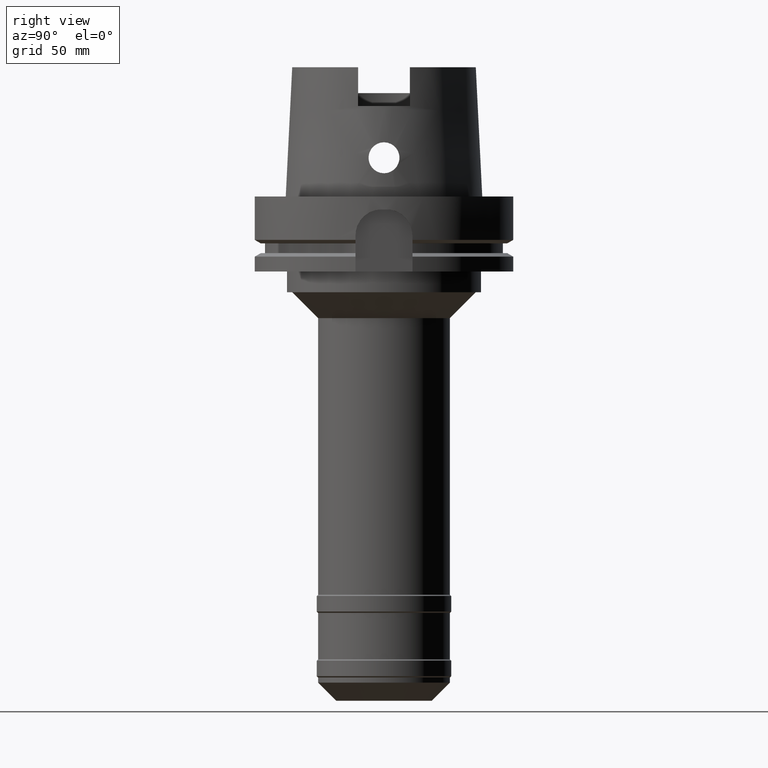
[diagram: clean part render]
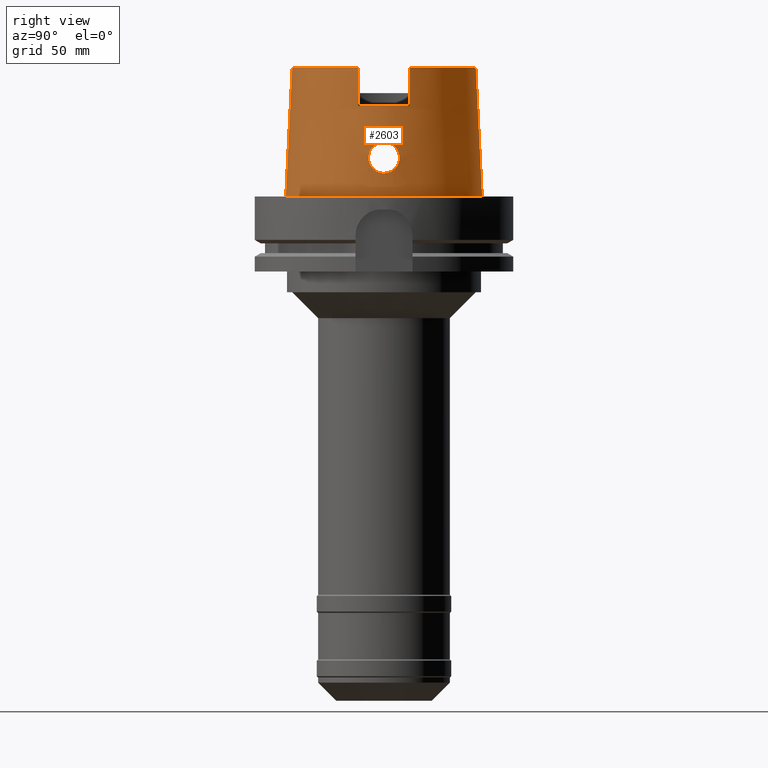
[diagram: same view with one face highlighted and labeled with its STEP entity id]
A machine part, right view. The second image highlights one B-rep face of the part: STEP entity #2603.
In plain terms, the highlighted conical surface has half-angle 2.862 deg.
Its self-contained STEP definition (entity closure, byte-faithful):
#33=CARTESIAN_POINT('',(0.E0,0.E0,5.E1));
#34=DIRECTION('',(0.E0,0.E0,-1.E0));
#35=DIRECTION('',(0.E0,1.E0,0.E0));
#36=AXIS2_PLACEMENT_3D('',#33,#34,#35);
#136=CARTESIAN_POINT('',(0.E0,0.E0,5.E1));
#137=DIRECTION('',(0.E0,0.E0,-1.E0));
#138=DIRECTION('',(9.594225291368E-1,-2.819723578379E-1,0.E0));
#139=AXIS2_PLACEMENT_3D('',#136,#137,#138);
#179=DIRECTION('',(0.E0,-4.993926899643E-2,-9.987522562738E-1));
#180=VECTOR('',#179,5.006246512678E1);
#181=CARTESIAN_POINT('',(0.E0,-3.549993366993E1,5.E1));
#182=LINE('',#181,#180);
#247=CARTESIAN_POINT('',(3.405943614579E1,-1.001E1,5.E1));
#248=CARTESIAN_POINT('',(3.414630939533E1,-1.001E1,4.833309222734E1));
#249=CARTESIAN_POINT('',(3.431997854160E1,-1.001E1,4.499943651641E1));
#250=CARTESIAN_POINT('',(3.458032701805E1,-1.001E1,3.999943644923E1));
#251=CARTESIAN_POINT('',(3.475379007651E1,-1.001E1,3.666642546522E1));
#252=CARTESIAN_POINT('',(3.484048499117E1,-1.001E1,3.5E1));
#257=CARTESIAN_POINT('',(3.484048499117E1,1.001E1,3.5E1));
#258=CARTESIAN_POINT('',(3.475379007651E1,1.001E1,3.666642546522E1));
#259=CARTESIAN_POINT('',(3.458032701805E1,1.001E1,3.999943644923E1));
#260=CARTESIAN_POINT('',(3.431997854160E1,1.001E1,4.499943651641E1));
#261=CARTESIAN_POINT('',(3.414630939533E1,1.001E1,4.833309222734E1));
#262=CARTESIAN_POINT('',(3.405943614579E1,1.001E1,5.E1));
#267=DIRECTION('',(0.E0,4.993926899643E-2,-9.987522562738E-1));
#268=VECTOR('',#267,5.006246512678E1);
#269=CARTESIAN_POINT('',(0.E0,3.549993366993E1,5.E1));
#270=LINE('',#269,#268);
#274=CARTESIAN_POINT('',(3.694998175923E1,-1.394597051989E-13,2.1E1));
#275=CARTESIAN_POINT('',(3.694998175923E1,-5.234217728663E-1,2.1E1));
#276=CARTESIAN_POINT('',(3.693411865166E1,-1.571197125381E0,2.086221161718E1));
#277=CARTESIAN_POINT('',(3.687085279245E1,-3.038679281329E0,2.025411054103E1));
#278=CARTESIAN_POINT('',(3.679106664680E1,-4.299432996954E0,1.928361276978E1));
#279=CARTESIAN_POINT('',(3.672656557567E1,-5.260203249894E0,1.802644670302E1));
#280=CARTESIAN_POINT('',(3.670708817057E1,-5.862657981133E0,1.656551014668E1));
#281=CARTESIAN_POINT('',(3.675186223113E1,-6.067611772192E0,1.500987966263E1));
#282=CARTESIAN_POINT('',(3.686434041658E1,-5.866855653502E0,1.344814933248E1));
#283=CARTESIAN_POINT('',(3.703127797633E1,-5.265324339363E0,1.198150257712E1));
#284=CARTESIAN_POINT('',(3.722230634096E1,-4.300883378145E0,1.071642143467E1));
#285=CARTESIAN_POINT('',(3.739906213044E1,-3.030222158648E0,9.740277009085E0));
#286=CARTESIAN_POINT('',(3.752125276507E1,-1.560576077819E0,9.135371318737E0));
#287=CARTESIAN_POINT('',(3.755000165825E1,-5.187462886041E-1,9.E0));
#288=CARTESIAN_POINT('',(3.755000165825E1,0.E0,9.E0));
#293=CARTESIAN_POINT('',(3.755000165825E1,0.E0,9.E0));
#294=CARTESIAN_POINT('',(3.755000165825E1,5.181766741291E-1,9.E0));
#295=CARTESIAN_POINT('',(3.752123895133E1,1.556030719149E0,9.135501113104E0));
#296=CARTESIAN_POINT('',(3.740126147330E1,3.007453140115E0,9.729311552863E0));
#297=CARTESIAN_POINT('',(3.722700995712E1,4.272390808172E0,1.068891818261E1));
#298=CARTESIAN_POINT('',(3.703575340698E1,5.246656550617E0,1.194749251342E1));
#299=CARTESIAN_POINT('',(3.686620807174E1,5.862552232412E0,1.342558944878E1));
#300=CARTESIAN_POINT('',(3.675191245334E1,6.068912992925E0,1.500452787410E1));
#301=CARTESIAN_POINT('',(3.670698804793E1,5.861792992385E0,1.657050652721E1));
#302=CARTESIAN_POINT('',(3.672676188694E1,5.257440283451E0,1.803020199603E1));
#303=CARTESIAN_POINT('',(3.679090433021E1,4.301639993875E0,1.928045892892E1));
#304=CARTESIAN_POINT('',(3.687049231689E1,3.045128383294E0,2.025041012137E1));
#305=CARTESIAN_POINT('',(3.693401882099E1,1.575649364124E0,2.086137108493E1));
#306=CARTESIAN_POINT('',(3.694998175923E1,5.252260993711E-1,2.1E1));
#307=CARTESIAN_POINT('',(3.694998175923E1,-1.394597051989E-13,2.1E1));
#327=CARTESIAN_POINT('',(0.E0,0.E0,3.5E1));
#328=DIRECTION('',(0.E0,0.E0,-1.E0));
#329=DIRECTION('',(9.611179264983E-1,2.761382468323E-1,0.E0));
#330=AXIS2_PLACEMENT_3D('',#327,#328,#329);
#358=CARTESIAN_POINT('',(0.E0,0.E0,-5.684341886081E-13));
#359=DIRECTION('',(0.E0,0.E0,1.E0));
#360=DIRECTION('',(0.E0,-1.E0,0.E0));
#361=AXIS2_PLACEMENT_3D('',#358,#359,#360);
#2114=CARTESIAN_POINT('',(0.E0,3.549993366992E1,5.E1));
#2115=VERTEX_POINT('',#2114);
#2116=CARTESIAN_POINT('',(3.405943614579E1,1.001E1,5.E1));
#2117=VERTEX_POINT('',#2116);
#2130=CARTESIAN_POINT('',(3.405943614579E1,-1.001E1,5.E1));
#2131=VERTEX_POINT('',#2130);
#2132=CARTESIAN_POINT('',(0.E0,-3.549993366992E1,5.E1));
#2133=VERTEX_POINT('',#2132);
#2148=CARTESIAN_POINT('',(3.484048499117E1,-1.001E1,3.5E1));
#2149=VERTEX_POINT('',#2148);
#2150=CARTESIAN_POINT('',(3.484048499117E1,1.001E1,3.5E1));
#2151=VERTEX_POINT('',#2150);
#2152=CARTESIAN_POINT('',(0.E0,3.800001658252E1,-6.039613253961E-13));
#2153=VERTEX_POINT('',#2152);
#2154=CARTESIAN_POINT('',(0.E0,-3.800001658252E1,-5.684341886081E-13));
#2155=VERTEX_POINT('',#2154);
#2156=VERTEX_POINT('',#274);
#2157=VERTEX_POINT('',#288);
#2579=CARTESIAN_POINT('',(0.E0,0.E0,2.5E1));
#2580=DIRECTION('',(0.E0,0.E0,-1.E0));
#2581=DIRECTION('',(0.E0,-1.E0,0.E0));
#2582=AXIS2_PLACEMENT_3D('',#2579,#2580,#2581);
#2583=CONICAL_SURFACE('',#2582,3.674997512622E1,2.8625E0);
#2584=ORIENTED_EDGE('',*,*,#2505,.T.);
#2586=ORIENTED_EDGE('',*,*,#2585,.F.);
#2588=ORIENTED_EDGE('',*,*,#2587,.T.);
#2589=ORIENTED_EDGE('',*,*,#2426,.F.);
#2590=ORIENTED_EDGE('',*,*,#2555,.T.);
#2592=ORIENTED_EDGE('',*,*,#2591,.F.);
#2593=ORIENTED_EDGE('',*,*,#2551,.F.);
#2594=ORIENTED_EDGE('',*,*,#2520,.F.);
#2595=EDGE_LOOP('',(#2584,#2586,#2588,#2589,#2590,#2592,#2593,#2594));
#2596=FACE_OUTER_BOUND('',#2595,.F.);
#2598=ORIENTED_EDGE('',*,*,#2597,.T.);
#2600=ORIENTED_EDGE('',*,*,#2599,.T.);
#2601=EDGE_LOOP('',(#2598,#2600));
#2602=FACE_BOUND('',#2601,.F.);
#37=CIRCLE('',#36,3.549993366992E1);
#140=CIRCLE('',#139,3.549993366992E1);
#253=B_SPLINE_CURVE_WITH_KNOTS('',3,(#247,#248,#249,#250,#251,#252),
.UNSPECIFIED.,.F.,.F.,(4,1,1,4),(0.E0,3.333333333333E-1,6.666666666667E-1,1.E0),
.UNSPECIFIED.);
#263=B_SPLINE_CURVE_WITH_KNOTS('',3,(#257,#258,#259,#260,#261,#262),
.UNSPECIFIED.,.F.,.F.,(4,1,1,4),(0.E0,3.333333333333E-1,6.666666666667E-1,1.E0),
.UNSPECIFIED.);
#289=B_SPLINE_CURVE_WITH_KNOTS('',3,(#274,#275,#276,#277,#278,#279,#280,#281,
#282,#283,#284,#285,#286,#287,#288),.UNSPECIFIED.,.F.,.F.,(4,1,1,1,1,1,1,1,1,1,
1,1,4),(0.E0,8.333333333333E-2,1.666666666667E-1,2.5E-1,3.333333333333E-1,
4.166666666667E-1,5.E-1,5.833333333333E-1,6.666666666667E-1,7.5E-1,
8.333333333333E-1,9.166666666667E-1,1.E0),.UNSPECIFIED.);
#308=B_SPLINE_CURVE_WITH_KNOTS('',3,(#293,#294,#295,#296,#297,#298,#299,#300,
#301,#302,#303,#304,#305,#306,#307),.UNSPECIFIED.,.F.,.F.,(4,1,1,1,1,1,1,1,1,1,
1,1,4),(0.E0,8.333333333333E-2,1.666666666667E-1,2.5E-1,3.333333333333E-1,
4.166666666667E-1,5.E-1,5.833333333333E-1,6.666666666667E-1,7.5E-1,
8.333333333333E-1,9.166666666667E-1,1.E0),.UNSPECIFIED.);
#331=CIRCLE('',#330,3.624995854370E1);
#362=CIRCLE('',#361,3.800001658252E1);
#2426=EDGE_CURVE('',#2115,#2117,#37,.T.);
#2505=EDGE_CURVE('',#2131,#2149,#253,.T.);
#2520=EDGE_CURVE('',#2131,#2133,#140,.T.);
#2551=EDGE_CURVE('',#2133,#2155,#182,.T.);
#2555=EDGE_CURVE('',#2115,#2153,#270,.T.);
#2585=EDGE_CURVE('',#2151,#2149,#331,.T.);
#2587=EDGE_CURVE('',#2151,#2117,#263,.T.);
#2591=EDGE_CURVE('',#2155,#2153,#362,.T.);
#2597=EDGE_CURVE('',#2156,#2157,#289,.T.);
#2599=EDGE_CURVE('',#2157,#2156,#308,.T.);
#2603=ADVANCED_FACE('',(#2596,#2602),#2583,.T.);